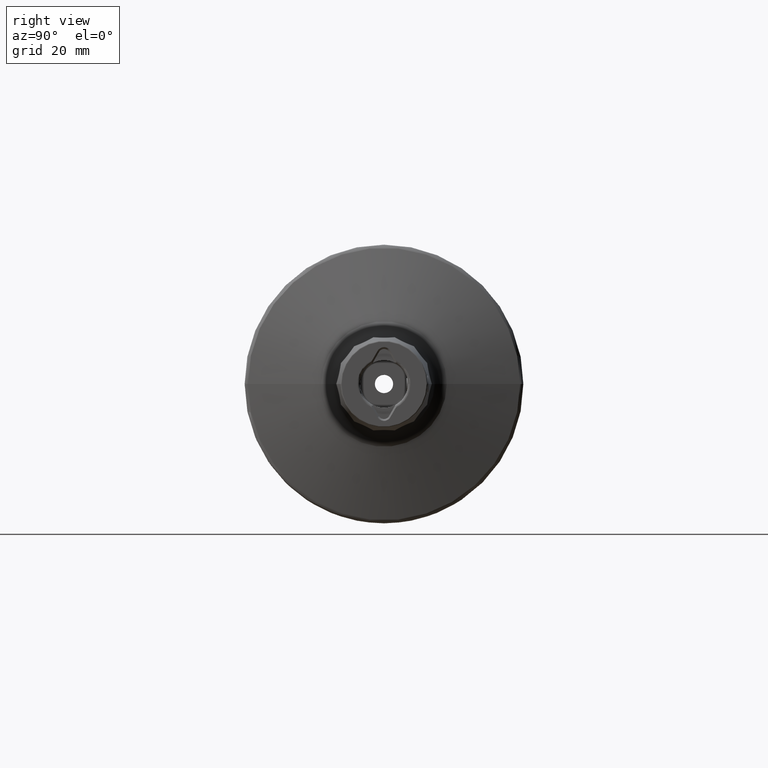
[diagram: clean part render]
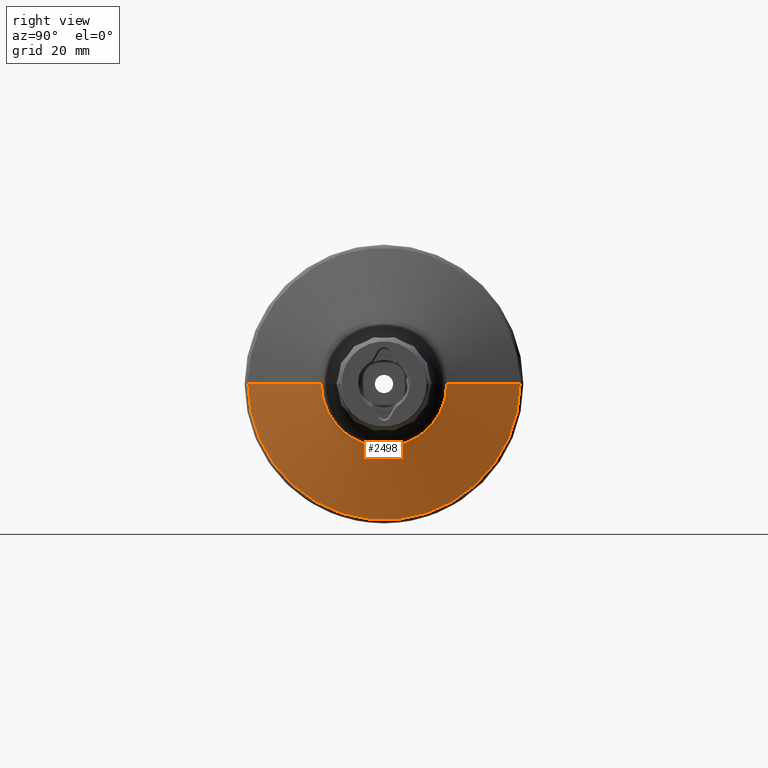
[diagram: same view with one face highlighted and labeled with its STEP entity id]
A machine part, right view. The second image highlights one B-rep face of the part: STEP entity #2498.
In plain terms, the highlighted conical surface has half-angle 75 deg.
Its self-contained STEP definition (entity closure, byte-faithful):
#125 = CIRCLE ( 'NONE', #5014, 14.41029653833965300 ) ;
#426 = AXIS2_PLACEMENT_3D ( 'NONE', #1156, #1145, #1136 ) ;
#648 = LINE ( 'NONE', #3882, #1241 ) ;
#1079 = CIRCLE ( 'NONE', #426, 31.25881904510252700 ) ;
#1136 = DIRECTION ( 'NONE',  ( 1.109909797599084100E-016, -1.000000000000000000, 0.0000000000000000000 ) ) ;
#1145 = DIRECTION ( 'NONE',  ( 1.000000000000000000, 1.262173199317614300E-016, -0.0000000000000000000 ) ) ;
#1156 = CARTESIAN_POINT ( 'NONE',  ( 12.19859883831014900, 2.683673056987130700E-015, 0.0000000000000000000 ) ) ;
#1214 = EDGE_LOOP ( 'NONE', ( #4930, #5149, #5084, #4922 ) ) ;
#1239 = DIRECTION ( 'NONE',  ( 0.0000000000000000000, -1.000000000000000000, 0.0000000000000000000 ) ) ;
#1241 = VECTOR ( 'NONE', #3979, 1000.000000000000000 ) ;
#1356 = CARTESIAN_POINT ( 'NONE',  ( 17.49295844483796000, 2.407282429337387900E-015, 0.0000000000000000000 ) ) ;
#1390 = EDGE_CURVE ( 'NONE', #3268, #4361, #125, .T. ) ;
#1439 = DIRECTION ( 'NONE',  ( -1.000000000000000000, -1.262173199317614300E-016, 0.0000000000000000000 ) ) ;
#1935 = DIRECTION ( 'NONE',  ( 2.407616625183871500E-016, -1.000000000000000000, 0.0000000000000000000 ) ) ;
#1943 = DIRECTION ( 'NONE',  ( -1.000000000000000000, -1.262173199317614300E-016, 0.0000000000000000000 ) ) ;
#1946 = CARTESIAN_POINT ( 'NONE',  ( 16.71314683765477600, 2.308856698227046600E-015, 0.0000000000000000000 ) ) ;
#2079 = VERTEX_POINT ( 'NONE', #4150 ) ;
#2498 = ADVANCED_FACE ( 'NONE', ( #3433 ), #3171, .T. ) ;
#3154 = EDGE_CURVE ( 'NONE', #3268, #2079, #648, .T. ) ;
#3171 = CONICAL_SURFACE ( 'NONE', #4615, 11.50000000000000200, 1.308996938995750100 ) ;
#3228 = EDGE_CURVE ( 'NONE', #4361, #4483, #5068, .T. ) ;
#3268 = VERTEX_POINT ( 'NONE', #3269 ) ;
#3269 = CARTESIAN_POINT ( 'NONE',  ( 16.71314683765477200, 14.41029653833965400, 2.796426810957648500E-015 ) ) ;
#3433 = FACE_OUTER_BOUND ( 'NONE', #1214, .T. ) ;
#3546 = EDGE_CURVE ( 'NONE', #4483, #2079, #1079, .T. ) ;
#3668 = CARTESIAN_POINT ( 'NONE',  ( 17.49295844483796000, -11.50000000000000000, 0.0000000000000000000 ) ) ;
#3677 = DIRECTION ( 'NONE',  ( -0.2588190451025178500, -0.9659258262890690900, 0.0000000000000000000 ) ) ;
#3882 = CARTESIAN_POINT ( 'NONE',  ( 17.49295844483796000, 11.50000000000000400, 1.408343819019456400E-015 ) ) ;
#3979 = DIRECTION ( 'NONE',  ( -0.2588190451025180700, 0.9659258262890690900, 1.182917971378670800E-016 ) ) ;
#4150 = CARTESIAN_POINT ( 'NONE',  ( 12.19859883831014500, 31.25881904510240300, 3.828101268871098800E-015 ) ) ;
#4361 = VERTEX_POINT ( 'NONE', #4969 ) ;
#4483 = VERTEX_POINT ( 'NONE', #4576 ) ;
#4576 = CARTESIAN_POINT ( 'NONE',  ( 12.19859883831015200, -31.25881904510239600, 0.0000000000000000000 ) ) ;
#4615 = AXIS2_PLACEMENT_3D ( 'NONE', #1356, #1439, #1239 ) ;
#4625 = VECTOR ( 'NONE', #3677, 1000.000000000000000 ) ;
#4922 = ORIENTED_EDGE ( 'NONE', *, *, #3546, .T. ) ;
#4930 = ORIENTED_EDGE ( 'NONE', *, *, #3154, .F. ) ;
#4969 = CARTESIAN_POINT ( 'NONE',  ( 16.71314683765477900, -14.41029653833965100, 0.0000000000000000000 ) ) ;
#5014 = AXIS2_PLACEMENT_3D ( 'NONE', #1946, #1943, #1935 ) ;
#5068 = LINE ( 'NONE', #3668, #4625 ) ;
#5084 = ORIENTED_EDGE ( 'NONE', *, *, #3228, .T. ) ;
#5149 = ORIENTED_EDGE ( 'NONE', *, *, #1390, .T. ) ;